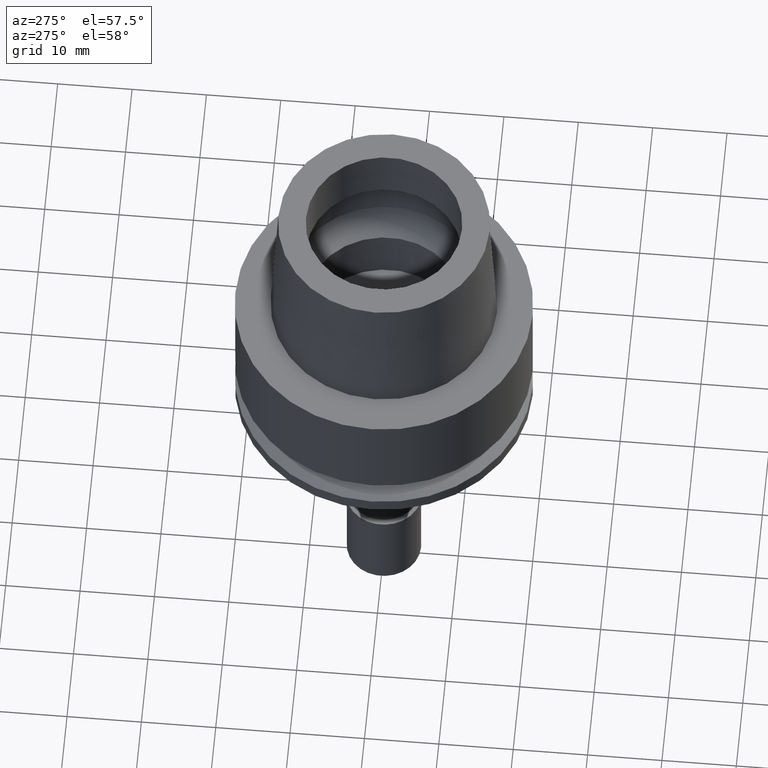
[diagram: clean part render]
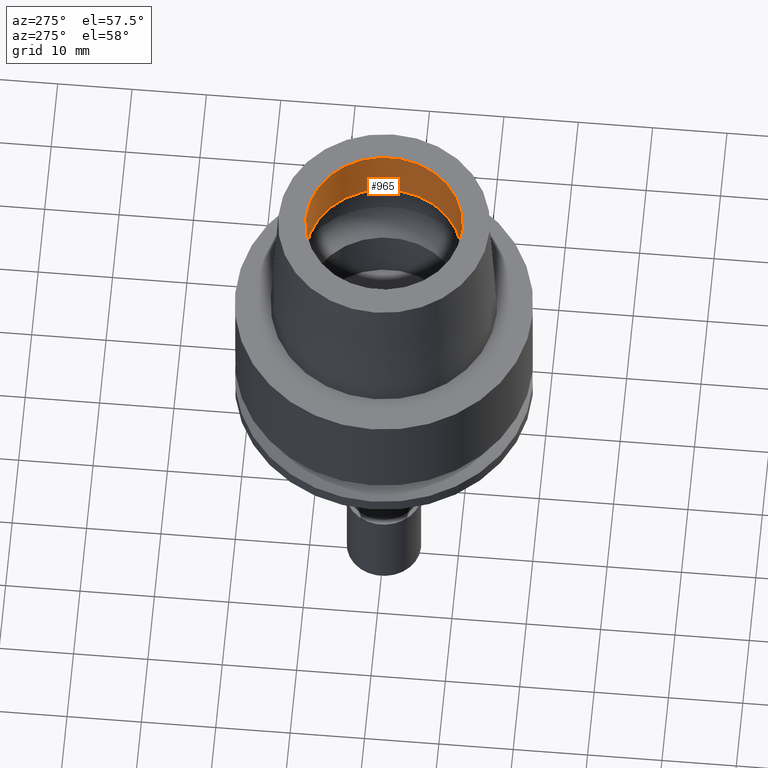
[diagram: same view with one face highlighted and labeled with its STEP entity id]
A machine part, auxiliary view. The second image highlights one B-rep face of the part: STEP entity #965.
In plain terms, the highlighted cylindrical surface (partial cylindrical patch) has radius 10.5 mm, axis along (0, 0, 1).
Its self-contained STEP definition (entity closure, byte-faithful):
#38 = DIRECTION ( 'NONE',  ( 0.0000000000000000000, 1.000000000000000000, 0.0000000000000000000 ) ) ;
#65 = CIRCLE ( 'NONE', #2631, 10.50000000000000000 ) ;
#130 = EDGE_CURVE ( 'NONE', #1674, #1183, #1754, .T. ) ;
#179 = AXIS2_PLACEMENT_3D ( 'NONE', #2327, #1487, #38 ) ;
#231 = LINE ( 'NONE', #1254, #1095 ) ;
#240 = CYLINDRICAL_SURFACE ( 'NONE', #179, 10.50000000000000000 ) ;
#314 = CARTESIAN_POINT ( 'NONE',  ( 0.0000000000000000000, 10.50000000000000000, 11.99735026918999914 ) ) ;
#410 = DIRECTION ( 'NONE',  ( 0.0000000000000000000, -4.528210123235999978E-14, 1.000000000000000000 ) ) ;
#468 = DIRECTION ( 'NONE',  ( 0.0000000000000000000, 4.528210123235999978E-14, 1.000000000000000000 ) ) ;
#699 = DIRECTION ( 'NONE',  ( 0.0000000000000000000, -1.000000000000000000, 0.0000000000000000000 ) ) ;
#763 = DIRECTION ( 'NONE',  ( 0.0000000000000000000, 0.0000000000000000000, -1.000000000000000000 ) ) ;
#834 = ORIENTED_EDGE ( 'NONE', *, *, #1799, .T. ) ;
#965 = ADVANCED_FACE ( 'NONE', ( #2167 ), #240, .F. ) ;
#1095 = VECTOR ( 'NONE', #410, 1000.000000000000000 ) ;
#1101 = CARTESIAN_POINT ( 'NONE',  ( 0.0000000000000000000, 0.0000000000000000000, 20.00000000000000000 ) ) ;
#1139 = AXIS2_PLACEMENT_3D ( 'NONE', #1101, #2572, #699 ) ;
#1179 = DIRECTION ( 'NONE',  ( 0.0000000000000000000, 1.000000000000000000, 0.0000000000000000000 ) ) ;
#1183 = VERTEX_POINT ( 'NONE', #1857 ) ;
#1193 = ORIENTED_EDGE ( 'NONE', *, *, #1727, .T. ) ;
#1254 = CARTESIAN_POINT ( 'NONE',  ( 0.0000000000000000000, -10.50000000000000000, 11.99735026918999914 ) ) ;
#1381 = EDGE_LOOP ( 'NONE', ( #834, #1385, #1193, #2130 ) ) ;
#1385 = ORIENTED_EDGE ( 'NONE', *, *, #2595, .T. ) ;
#1487 = DIRECTION ( 'NONE',  ( 0.0000000000000000000, 0.0000000000000000000, 1.000000000000000000 ) ) ;
#1674 = VERTEX_POINT ( 'NONE', #2352 ) ;
#1727 = EDGE_CURVE ( 'NONE', #2332, #1183, #1977, .T. ) ;
#1754 = LINE ( 'NONE', #314, #2661 ) ;
#1791 = CARTESIAN_POINT ( 'NONE',  ( 0.0000000000000000000, 0.0000000000000000000, 11.99735026918999914 ) ) ;
#1799 = EDGE_CURVE ( 'NONE', #1674, #1816, #65, .T. ) ;
#1816 = VERTEX_POINT ( 'NONE', #2279 ) ;
#1857 = CARTESIAN_POINT ( 'NONE',  ( 0.0000000000000000000, 10.50000000000000000, 20.00000000000000000 ) ) ;
#1977 = CIRCLE ( 'NONE', #1139, 10.50000000000000000 ) ;
#2130 = ORIENTED_EDGE ( 'NONE', *, *, #130, .F. ) ;
#2167 = FACE_OUTER_BOUND ( 'NONE', #1381, .T. ) ;
#2279 = CARTESIAN_POINT ( 'NONE',  ( 0.0000000000000000000, -10.50000000000000000, 11.99735026918999914 ) ) ;
#2327 = CARTESIAN_POINT ( 'NONE',  ( 0.0000000000000000000, 0.0000000000000000000, -60.11500000000000199 ) ) ;
#2332 = VERTEX_POINT ( 'NONE', #2381 ) ;
#2352 = CARTESIAN_POINT ( 'NONE',  ( 0.0000000000000000000, 10.50000000000000000, 11.99735026918999914 ) ) ;
#2381 = CARTESIAN_POINT ( 'NONE',  ( 0.0000000000000000000, -10.50000000000000000, 20.00000000000000000 ) ) ;
#2572 = DIRECTION ( 'NONE',  ( 0.0000000000000000000, 0.0000000000000000000, 1.000000000000000000 ) ) ;
#2595 = EDGE_CURVE ( 'NONE', #1816, #2332, #231, .T. ) ;
#2631 = AXIS2_PLACEMENT_3D ( 'NONE', #1791, #763, #1179 ) ;
#2661 = VECTOR ( 'NONE', #468, 1000.000000000000000 ) ;